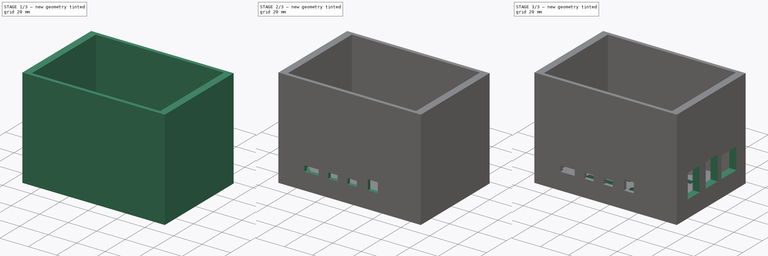
[diagram: build sequence overview — one tinted view per stage of 3, left to right]
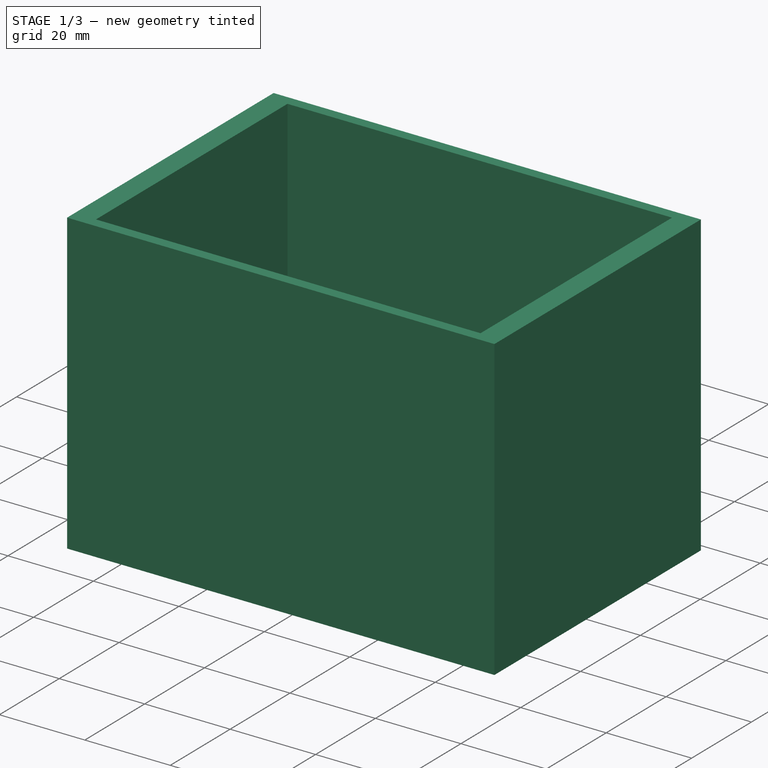
[diagram: stage 1 of 3 — iso view after this stage's code; geometry added in this stage tinted green]
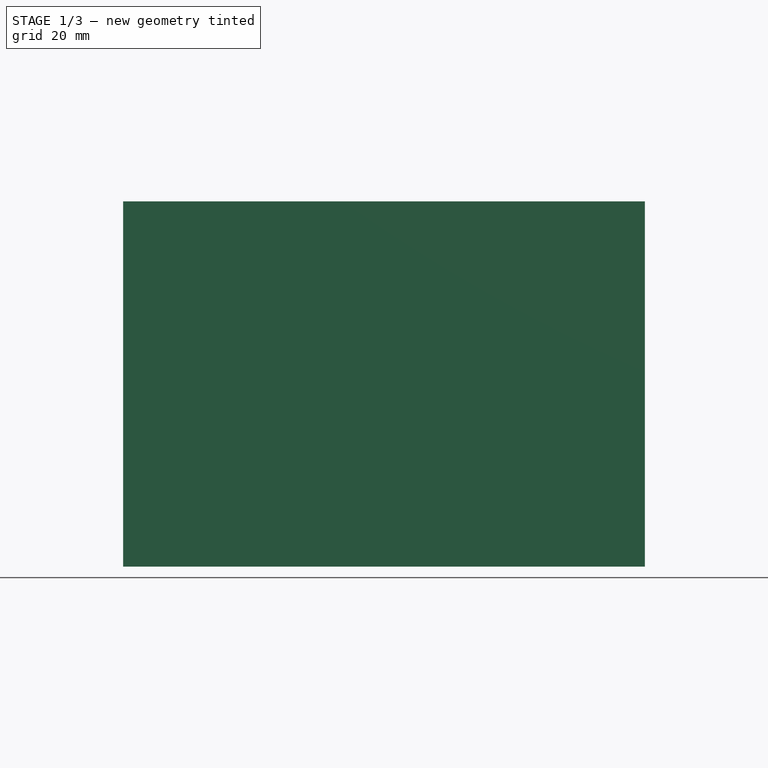
[diagram: stage 1 of 3 — front view after this stage's code; geometry added in this stage tinted green]
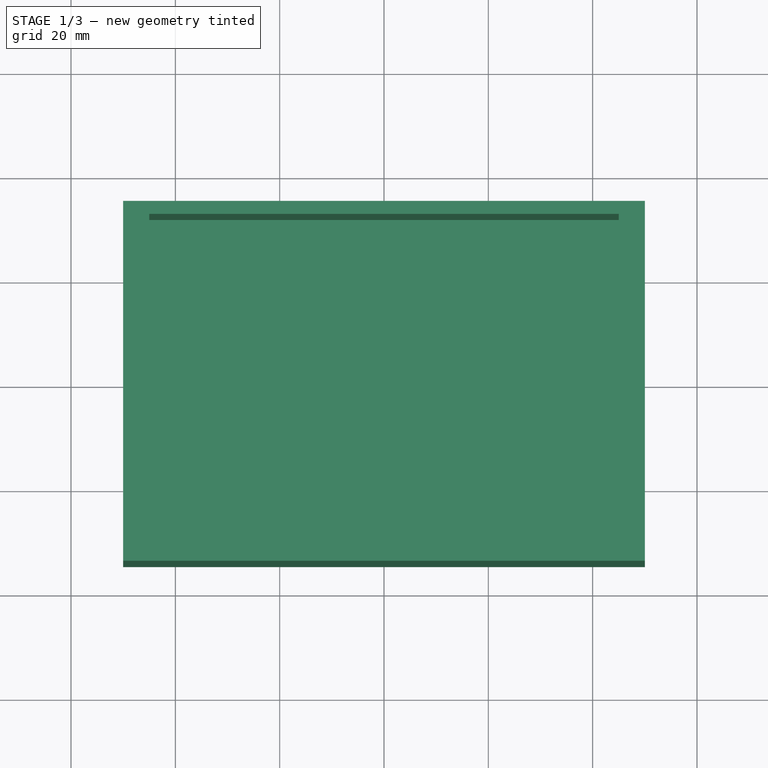
[diagram: stage 1 of 3 — top view after this stage's code; geometry added in this stage tinted green]
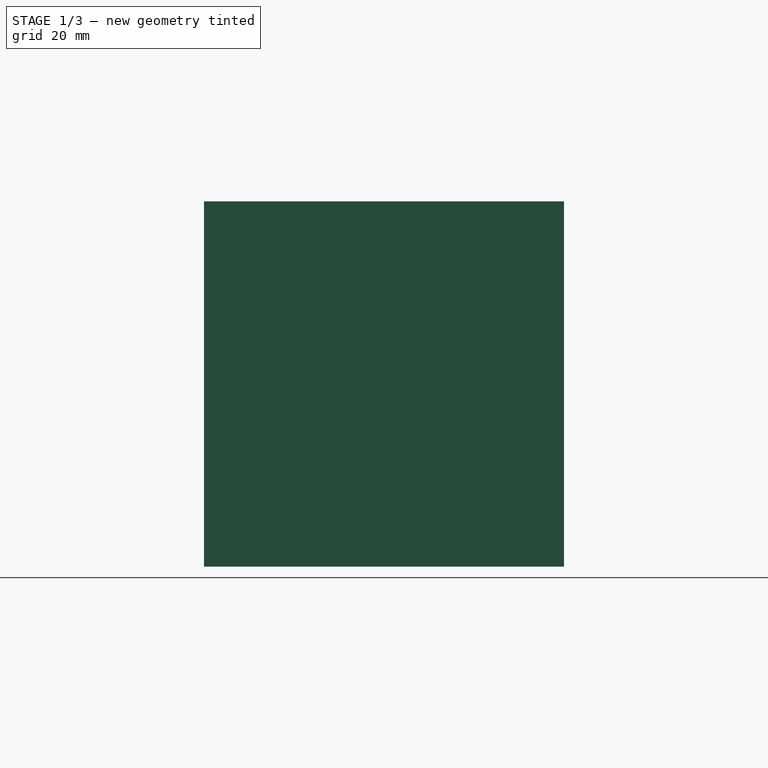
[diagram: stage 1 of 3 — right view after this stage's code; geometry added in this stage tinted green]
FCSTD DOCUMENT  (FreeCAD 0.19R24267 +99 (Git))
Label: case_spi4_v3
License: All rights reserved
LicenseURL: http://en.wikipedia.org/wiki/All_rights_reserved
objects: Sketcher::SketchObject×6, PartDesign::Pocket×4, PartDesign::Pad×2, PartDesign::Body×1
note: 19 computed .brp shape members not serialized (recipe doc carries the construction recipe); baked Part::Feature solids carry a one-line shape summary decoded from their .brp

FEATURE [Sketcher::SketchObject] Sketch  label="external_rough_case"
  FullyConstrained = true
  MapMode = 5
  Support = -> [XY_Plane]
  sketch-geometry (4):
    g0: LineSegment StartX=-50 StartY=34.5 StartZ=0 EndX=50 EndY=34.5 EndZ=0
    g1: LineSegment StartX=50 StartY=34.5 StartZ=0 EndX=50 EndY=-34.5 EndZ=0
    g2: LineSegment StartX=50 StartY=-34.5 StartZ=0 EndX=-50 EndY=-34.5 EndZ=0
    g3: LineSegment StartX=-50 StartY=-34.5 StartZ=0 EndX=-50 EndY=34.5 EndZ=0
  constraints (10):
    c: Coincident(g0,g1)
    c: Coincident(g1,g2)
    c: Coincident(g2,g3)
    c: Coincident(g3,g0)
    c: Horizontal(g2)
    c: Vertical(g1)
    c: DistanceY(g3,g3) = 69
    c: DistanceX(g0,g0) = 100
    c: Symmetric(g0,g0,g-2)
    c: Symmetric(g0,g2,g-1)
FEATURE [PartDesign::Pad] Pad
  Direction = (1,1,1)
  Length = 70
  Length2 = 100
  Profile = -> Sketch
  Type = 0
FEATURE [Sketcher::SketchObject] Sketch001  label="bulk_inner_carving"
  FullyConstrained = true
  MapMode = 5
  Placement = pos=(0,0,70) rot=(0,0,1;0rad)
  Support = -> [Pad]
  sketch-geometry (4):
    g0: LineSegment StartX=-45 StartY=32 StartZ=0 EndX=45 EndY=32 EndZ=0
    g1: LineSegment StartX=45 StartY=32 StartZ=0 EndX=45 EndY=-32 EndZ=0
    g2: LineSegment StartX=45 StartY=-32 StartZ=0 EndX=-45 EndY=-32 EndZ=0
    g3: LineSegment StartX=-45 StartY=-32 StartZ=0 EndX=-45 EndY=32 EndZ=0
  constraints (10):
    c: Coincident(g0,g1)
    c: Coincident(g1,g2)
    c: Coincident(g2,g3)
    c: Coincident(g3,g0)
    c: Horizontal(g2)
    c: Vertical(g3)
    c: DistanceY(g3,g3) = 64
    c: DistanceX(g0,g0) = 90
    c: Symmetric(g0,g0,g-2)
    c: Symmetric(g0,g1,g-1)
FEATURE [PartDesign::Pocket] Pocket
  BaseFeature = -> Pad
  Length = 67.5
  Length2 = 100
  Profile = -> Sketch001
  Type = 0
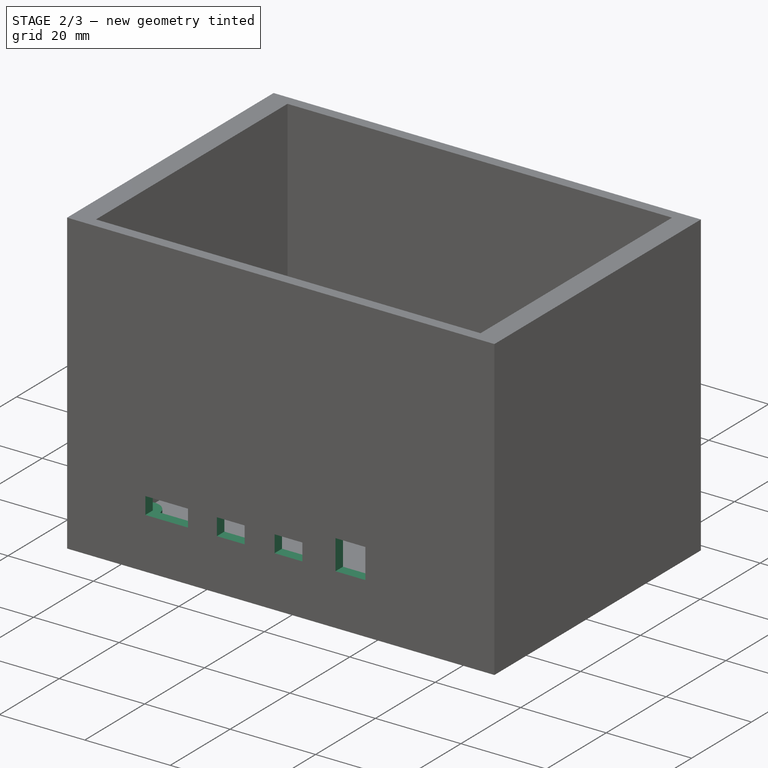
[diagram: stage 2 of 3 — iso view after this stage's code; geometry added in this stage tinted green]
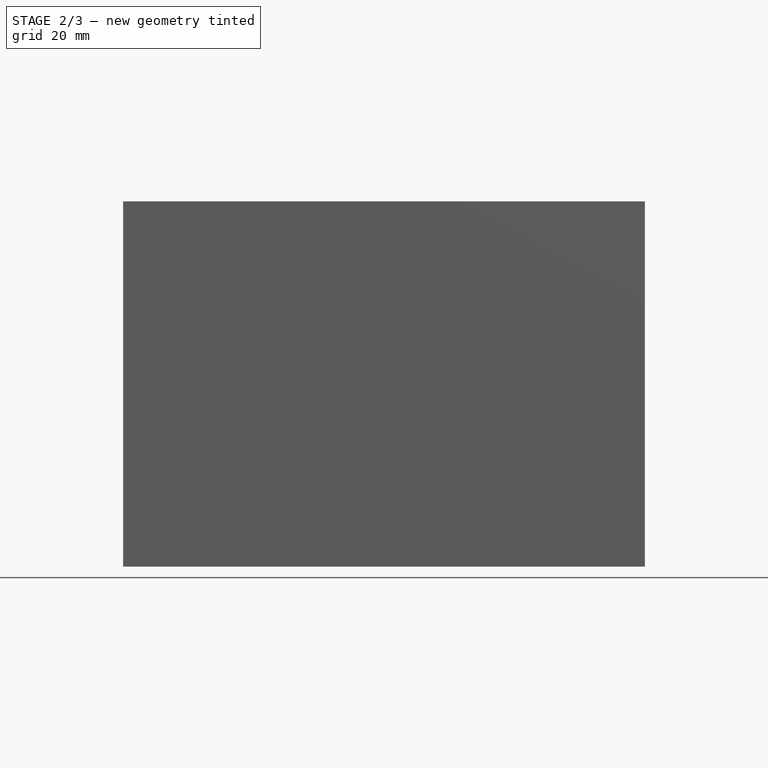
[diagram: stage 2 of 3 — front view after this stage's code; geometry added in this stage tinted green]
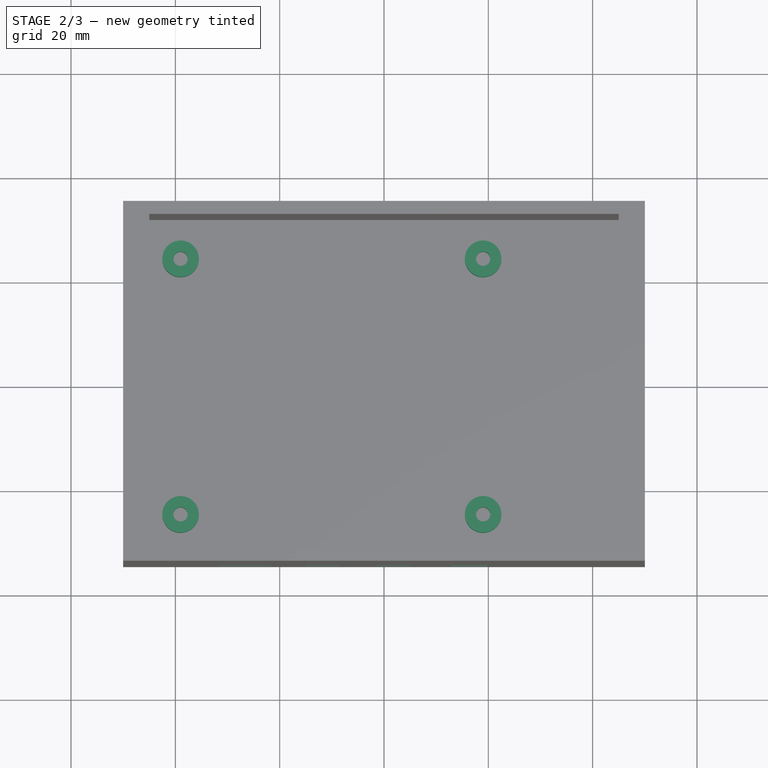
[diagram: stage 2 of 3 — top view after this stage's code; geometry added in this stage tinted green]
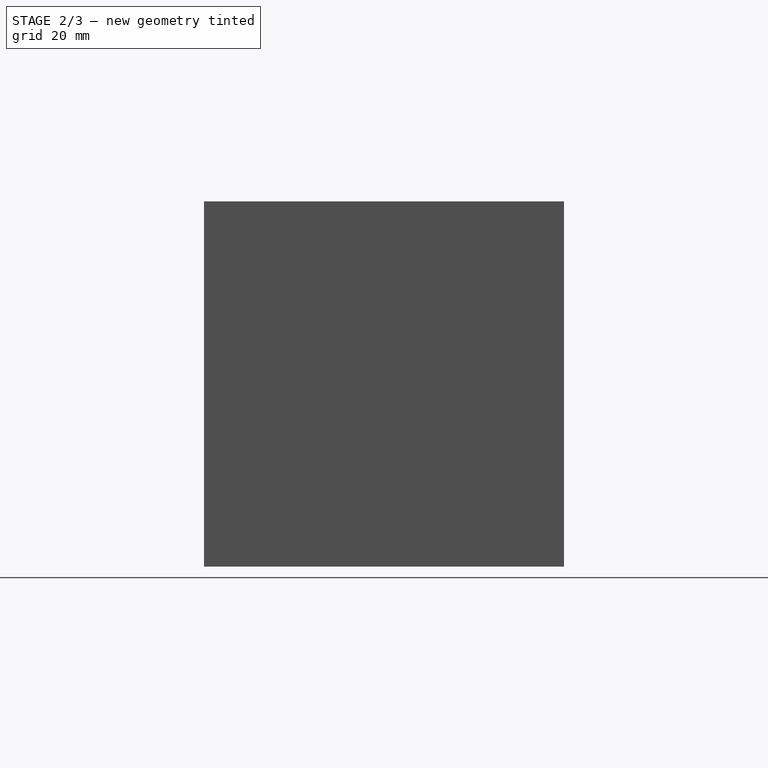
[diagram: stage 2 of 3 — right view after this stage's code; geometry added in this stage tinted green]
FEATURE [Sketcher::SketchObject] Sketch002  label="mounting_pads"
  FullyConstrained = true
  MapMode = 5
  Placement = pos=(0,0,2.5) rot=(0,0,1;0rad)
  Support = -> [Pocket]
  sketch-geometry (12):
    g0: Circle CenterX=-39 CenterY=24.5 CenterZ=0 NormalX=0 NormalY=0 NormalZ=1 AngleXU=0 Radius=1.37
    g1: Circle CenterX=-39 CenterY=24.5 CenterZ=0 NormalX=0 NormalY=0 NormalZ=1 AngleXU=0 Radius=3.5
    g2: Circle CenterX=19 CenterY=24.5 CenterZ=0 NormalX=0 NormalY=0 NormalZ=1 AngleXU=0 Radius=1.37
    g3: Circle CenterX=19 CenterY=24.5 CenterZ=0 NormalX=0 NormalY=0 NormalZ=1 AngleXU=0 Radius=3.5
    g4: Circle CenterX=-39 CenterY=-24.5 CenterZ=0 NormalX=0 NormalY=0 NormalZ=1 AngleXU=0 Radius=1.37
    g5: Circle CenterX=-39 CenterY=-24.5 CenterZ=0 NormalX=0 NormalY=0 NormalZ=1 AngleXU=0 Radius=3.5
    g6: Circle CenterX=19 CenterY=-24.5 CenterZ=0 NormalX=0 NormalY=0 NormalZ=1 AngleXU=0 Radius=1.37
    g7: Circle CenterX=19 CenterY=-24.5 CenterZ=0 NormalX=0 NormalY=0 NormalZ=1 AngleXU=0 Radius=3.5
    g8: LineSegment StartX=-39 StartY=24.5 StartZ=0 EndX=19 EndY=24.5 EndZ=0
    g9: LineSegment StartX=19 StartY=24.5 StartZ=0 EndX=19 EndY=-24.5 EndZ=0
    g10: LineSegment StartX=19 StartY=-24.5 StartZ=0 EndX=-39 EndY=-24.5 EndZ=0
    g11: LineSegment StartX=-39 StartY=-24.5 StartZ=0 EndX=-39 EndY=24.5 EndZ=0
  constraints (27):
    c: Coincident(g1,g0)
    c: Radius(g1) = 3.5
    c: Radius(g0) = 1.37
    c: Coincident(g3,g2)
    c: Equal(g1,g3) = 4.5
    c: Equal(g0,g2) = 1.37
    c: Coincident(g5,g4)
    c: Equal(g1,g5) = 4.5
    c: Equal(g0,g4) = 1.37
    c: Coincident(g7,g6)
    c: Equal(g1,g7) = 4.5
    c: Equal(g0,g6) = 1.37
    c: Coincident(g8,g9)
    c: Coincident(g9,g10)
    c: Coincident(g10,g11)
    c: Coincident(g11,g8)
    c: Horizontal(g8)
    c: Horizontal(g10)
    c: Vertical(g9)
    c: Coincident(g8,g0)
    c: Coincident(g9,g6)
    c: Coincident(g10,g4)
    c: Coincident(g8,g2)
    c: DistanceX(g8,g8) = 58
    c: DistanceY(g11,g11) = 49
    c: Symmetric(g0,g4,g-1)
    c: DistanceX(g0,g-1) = 39
FEATURE [PartDesign::Pad] Pad001
  BaseFeature = -> Pocket
  Direction = (1,1,1)
  Length = 5
  Length2 = 100
  Profile = -> Sketch002
  Type = 0
FEATURE [Sketcher::SketchObject] Sketch003  label="hdmi_holes"
  FullyConstrained = true
  MapMode = 5
  Placement = pos=(0,-34.5,0) rot=(1,0,0;1.5708rad)
  Support = -> [Pad001]
  sketch-geometry (16):
    g0: LineSegment StartX=-31.7 StartY=16 StartZ=0 EndX=-21.7 EndY=16 EndZ=0
    g1: LineSegment StartX=-21.7 StartY=16 StartZ=0 EndX=-21.7 EndY=12 EndZ=0
    g2: LineSegment StartX=-21.7 StartY=12 StartZ=0 EndX=-31.7 EndY=12 EndZ=0
    g3: LineSegment StartX=-31.7 StartY=12 StartZ=0 EndX=-31.7 EndY=16 EndZ=0
    g4: LineSegment StartX=-14.95 StartY=16 StartZ=0 EndX=-8.45 EndY=16 EndZ=0
    g5: LineSegment StartX=-8.45 StartY=16 StartZ=0 EndX=-8.45 EndY=12 EndZ=0
    g6: LineSegment StartX=-8.45 StartY=12 StartZ=0 EndX=-14.95 EndY=12 EndZ=0
    g7: LineSegment StartX=-14.95 StartY=12 StartZ=0 EndX=-14.95 EndY=16 EndZ=0
    g8: LineSegment StartX=-1.45 StartY=16 StartZ=0 EndX=5.05 EndY=16 EndZ=0
    g9: LineSegment StartX=5.05 StartY=16 StartZ=0 EndX=5.05 EndY=12 EndZ=0
    g10: LineSegment StartX=5.05 StartY=12 StartZ=0 EndX=-1.45 EndY=12 EndZ=0
    g11: LineSegment StartX=-1.45 StartY=12 StartZ=0 EndX=-1.45 EndY=16 EndZ=0
    g12: LineSegment StartX=12.8 StartY=19 StartZ=0 EndX=19.8 EndY=19 EndZ=0
    g13: LineSegment StartX=19.8 StartY=19 StartZ=0 EndX=19.8 EndY=12 EndZ=0
    g14: LineSegment StartX=19.8 StartY=12 StartZ=0 EndX=12.8 EndY=12 EndZ=0
    g15: LineSegment StartX=12.8 StartY=12 StartZ=0 EndX=12.8 EndY=19 EndZ=0
  constraints (48):
    c: Coincident(g0,g1)
    c: Coincident(g1,g2)
    c: Coincident(g2,g3)
    c: Coincident(g3,g0)
    c: Horizontal(g0)
    c: Horizontal(g2)
    c: Vertical(g1)
    c: Vertical(g3)
    c: Coincident(g4,g5)
    c: Coincident(g5,g6)
    c: Coincident(g6,g7)
    c: Coincident(g7,g4)
    c: Horizontal(g4)
    c: Horizontal(g6)
    c: Vertical(g5)
    c: Vertical(g7)
    c: Coincident(g8,g9)
    c: Coincident(g9,g10)
    c: Coincident(g10,g11)
    c: Coincident(g11,g8)
    c: Horizontal(g8)
    c: Horizontal(g10)
    c: Vertical(g9)
    c: Vertical(g11)
    c: Coincident(g12,g13)
    c: Coincident(g13,g14)
    c: Coincident(g14,g15)
    c: Coincident(g15,g12)
    c: Horizontal(g12)
    c: Horizontal(g14)
    c: Vertical(g13)
    c: Vertical(g15)
    c: Equal(g5,g11)
    c: Equal(g8,g4)
    c: Horizontal(g14,g9)
    c: Horizontal(g10,g5)
    c: Horizontal(g1,g6)
    c: DistanceX(g0,g0) = 10
    c: DistanceX(g12,g12) = 7
    c: DistanceX(g8,g8) = 6.5
    c: DistanceY(g9,g9) = 4
    c: Equal(g12,g15)
    c: Equal(g7,g1)
    c: DistanceX(g0,g4) = 6.75
    c: DistanceX(g4,g8) = 13.5
    c: DistanceX(g8,g12) = 7.75
    c: DistanceY(g-1,g13) = 12
    c: DistanceX(g2,g-1) = 31.7
FEATURE [PartDesign::Pocket] Pocket001
  BaseFeature = -> Pad001
  Length = 5
  Length2 = 100
  Profile = -> Sketch003
  Type = 0
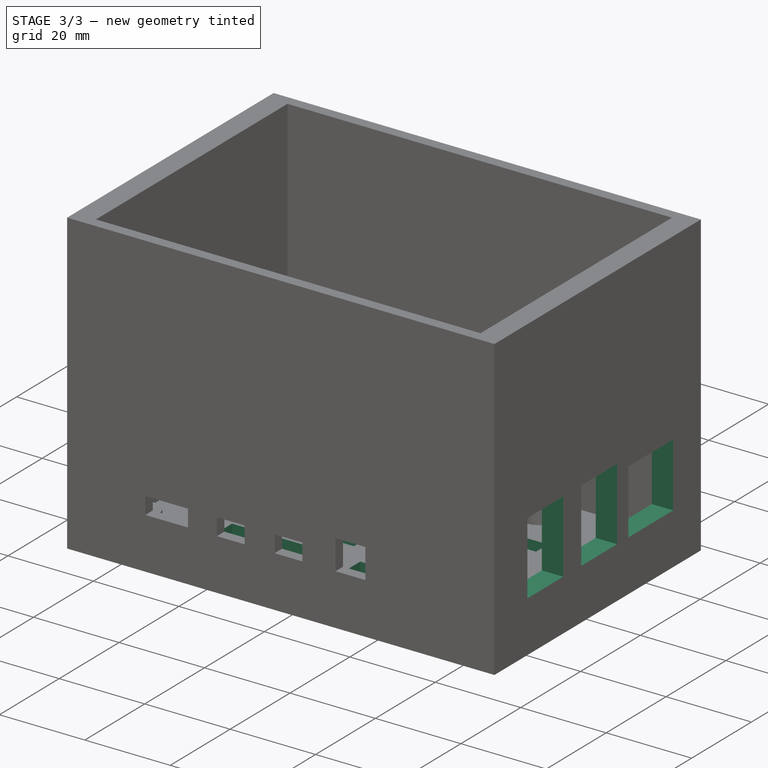
[diagram: stage 3 of 3 — iso view after this stage's code; geometry added in this stage tinted green]
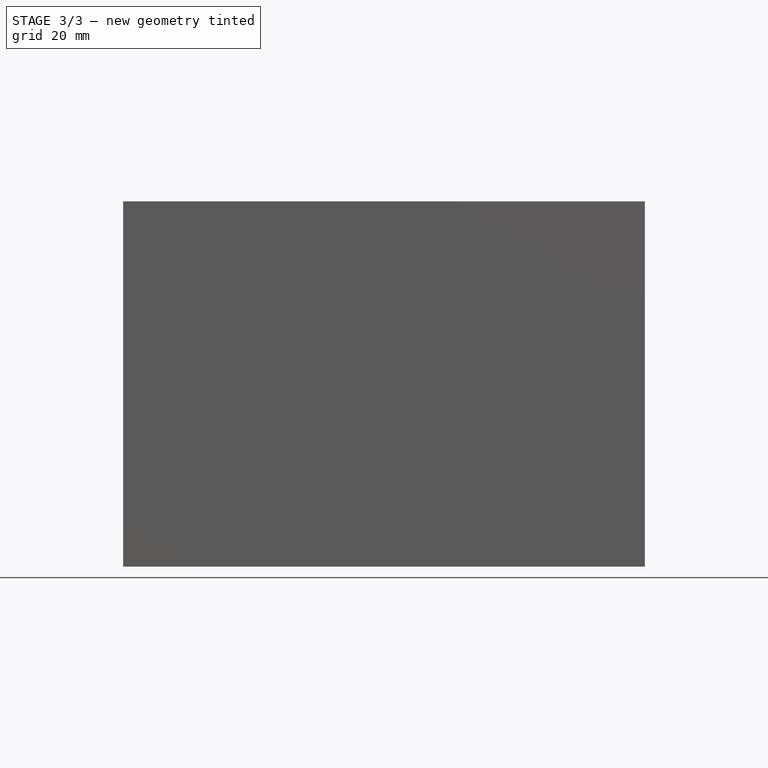
[diagram: stage 3 of 3 — front view after this stage's code; geometry added in this stage tinted green]
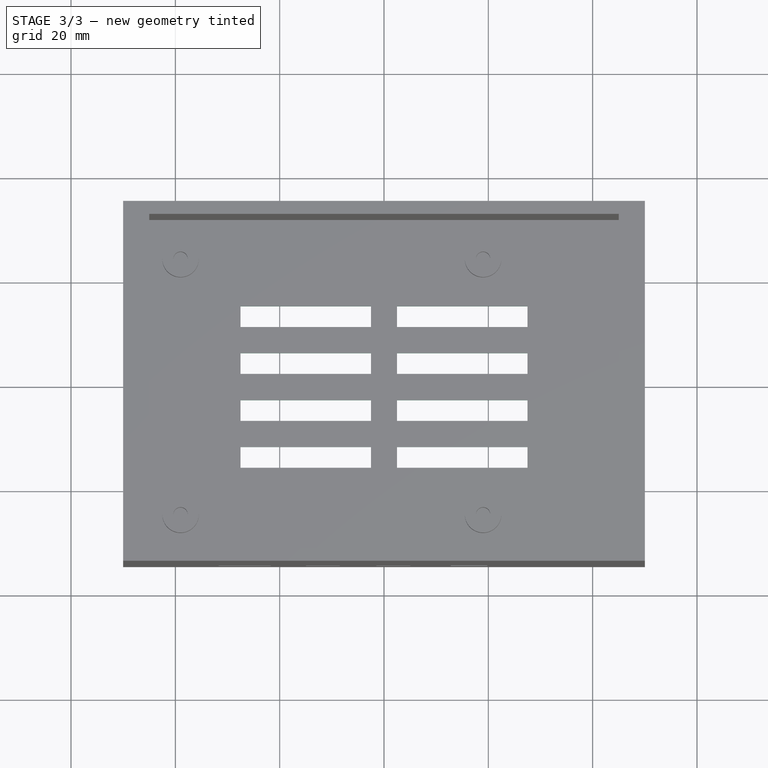
[diagram: stage 3 of 3 — top view after this stage's code; geometry added in this stage tinted green]
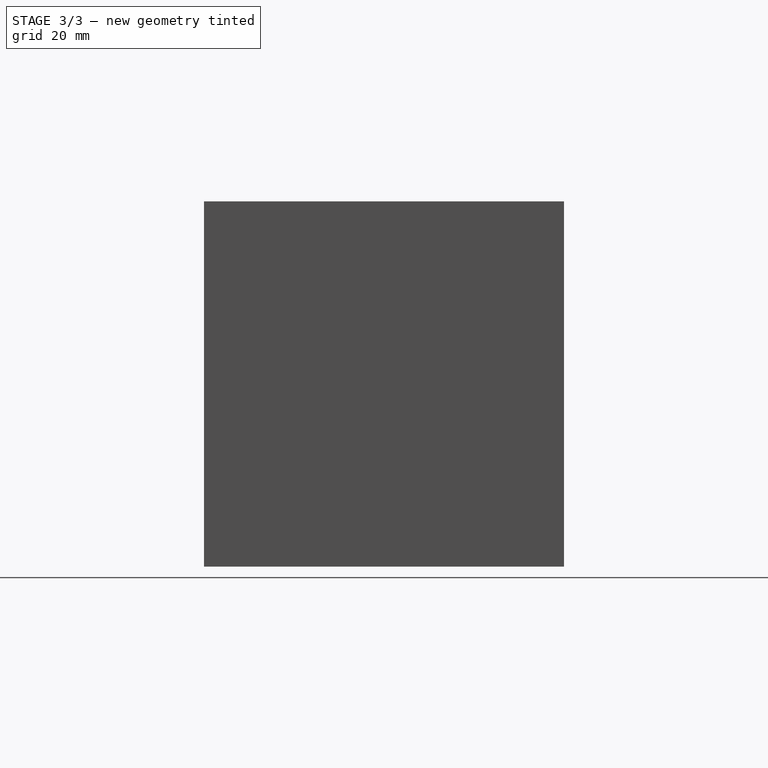
[diagram: stage 3 of 3 — right view after this stage's code; geometry added in this stage tinted green]
FEATURE [Sketcher::SketchObject] Sketch004  label="USB+Ethernet"
  FullyConstrained = true
  MapMode = 5
  Placement = pos=(50,0,0) rot=(0.57735,0.57735,0.57735;2.0944rad)
  Support = -> [Pocket001]
  sketch-geometry (16):
    g0: LineSegment StartX=-23.5 StartY=29 StartZ=0 EndX=-11.5 EndY=29 EndZ=0
    g1: LineSegment StartX=-11.5 StartY=29 StartZ=0 EndX=-11.5 EndY=12 EndZ=0
    g2: LineSegment StartX=-11.5 StartY=12 StartZ=0 EndX=-23.5 EndY=12 EndZ=0
    g3: LineSegment StartX=-23.5 StartY=12 StartZ=0 EndX=-23.5 EndY=29 EndZ=0
    g4: LineSegment StartX=-5.5 StartY=29 StartZ=0 EndX=6.5 EndY=29 EndZ=0
    g5: LineSegment StartX=6.5 StartY=29 StartZ=0 EndX=6.5 EndY=12 EndZ=0
    g6: LineSegment StartX=6.5 StartY=12 StartZ=0 EndX=-5.5 EndY=12 EndZ=0
    g7: LineSegment StartX=-5.5 StartY=12 StartZ=0 EndX=-5.5 EndY=29 EndZ=0
    g8: LineSegment StartX=10.25 StartY=27 StartZ=0 EndX=25.25 EndY=27 EndZ=0
    g9: LineSegment StartX=25.25 StartY=27 StartZ=0 EndX=25.25 EndY=12 EndZ=0
    g10: LineSegment StartX=25.25 StartY=12 StartZ=0 EndX=10.25 EndY=12 EndZ=0
    g11: LineSegment StartX=10.25 StartY=12 StartZ=0 EndX=10.25 EndY=27 EndZ=0
    g12: LineSegment StartX=-11.5 StartY=29 StartZ=0 EndX=-5.5 EndY=29 EndZ=0
    g13: LineSegment StartX=6.5 StartY=29 StartZ=0 EndX=10.25 EndY=27 EndZ=0
    g14: LineSegment StartX=-11.5 StartY=12 StartZ=0 EndX=-5.5 EndY=12 EndZ=0
    g15: LineSegment StartX=6.5 StartY=12 StartZ=0 EndX=10.25 EndY=12 EndZ=0
  constraints (44):
    c: Coincident(g0,g1)
    c: Coincident(g1,g2)
    c: Coincident(g2,g3)
    c: Coincident(g3,g0)
    c: Horizontal(g0)
    c: Horizontal(g2)
    c: Vertical(g1)
    c: Vertical(g3)
    c: Coincident(g4,g5)
    c: Coincident(g5,g6)
    c: Coincident(g6,g7)
    c: Coincident(g7,g4)
    c: Horizontal(g4)
    c: Horizontal(g6)
    c: Vertical(g5)
    c: Vertical(g7)
    c: Coincident(g8,g9)
    c: Coincident(g9,g10)
    c: Coincident(g10,g11)
    c: Coincident(g11,g8)
    c: Horizontal(g8)
    c: Horizontal(g10)
    c: Vertical(g9)
    c: Vertical(g11)
    c: DistanceY(g11,g11) = 15
    c: Equal(g1,g7)
    c: DistanceY(g7,g7) = 17
    c: Horizontal(g1,g5)
    c: Horizontal(g5,g10)
    c: Equal(g2,g6)
    c: DistanceX(g0,g0) = 12
    c: Equal(g8,g11)
    c: DistanceX(g4,g8) = 18.75
    c: DistanceX(g0,g4) = 18
    c: DistanceY(g-1,g2) = 12
    c: Coincident(g12,g0)
    c: Coincident(g12,g4)
    c: Coincident(g13,g4)
    c: Coincident(g13,g8)
    c: Coincident(g14,g1)
    c: Coincident(g14,g6)
    c: Coincident(g15,g5)
    c: Coincident(g15,g10)
    c: DistanceX(g9,g-1) = -25.25
FEATURE [PartDesign::Pocket] Pocket002
  BaseFeature = -> Pocket001
  Length = 5
  Length2 = 100
  Profile = -> Sketch004
  Type = 0
FEATURE [Sketcher::SketchObject] Sketch005  label="bottom_vents"
  FullyConstrained = true
  MapMode = 5
  Placement = pos=(0,0,2.5) rot=(0,0,1;0rad)
  Support = -> [Pocket002]
  sketch-geometry (48):
    g0: LineSegment StartX=-27.5 StartY=15.5 StartZ=0 EndX=-2.5 EndY=15.5 EndZ=0
    g1: LineSegment StartX=-2.5 StartY=15.5 StartZ=0 EndX=-2.5 EndY=11.5 EndZ=0
    g2: LineSegment StartX=-2.5 StartY=11.5 StartZ=0 EndX=-27.5 EndY=11.5 EndZ=0
    g3: LineSegment StartX=-27.5 StartY=11.5 StartZ=0 EndX=-27.5 EndY=15.5 EndZ=0
    g4: LineSegment StartX=2.5 StartY=15.5 StartZ=0 EndX=27.5 EndY=15.5 EndZ=0
    g5: LineSegment StartX=27.5 StartY=15.5 StartZ=0 EndX=27.5 EndY=11.5 EndZ=0
    g6: LineSegment StartX=27.5 StartY=11.5 StartZ=0 EndX=2.5 EndY=11.5 EndZ=0
    g7: LineSegment StartX=2.5 StartY=11.5 StartZ=0 EndX=2.5 EndY=15.5 EndZ=0
    g8: LineSegment StartX=-27.5 StartY=6.5 StartZ=0 EndX=-2.5 EndY=6.5 EndZ=0
    g9: LineSegment StartX=-2.5 StartY=6.5 StartZ=0 EndX=-2.5 EndY=2.5 EndZ=0
    g10: LineSegment StartX=-2.5 StartY=2.5 StartZ=0 EndX=-27.5 EndY=2.5 EndZ=0
    g11: LineSegment StartX=-27.5 StartY=2.5 StartZ=0 EndX=-27.5 EndY=6.5 EndZ=0
    g12: LineSegment StartX=2.5 StartY=6.5 StartZ=0 EndX=27.5 EndY=6.5 EndZ=0
    g13: LineSegment StartX=27.5 StartY=6.5 StartZ=0 EndX=27.5 EndY=2.5 EndZ=0
    g14: LineSegment StartX=27.5 StartY=2.5 StartZ=0 EndX=2.5 EndY=2.5 EndZ=0
    g15: LineSegment StartX=2.5 StartY=2.5 StartZ=0 EndX=2.5 EndY=6.5 EndZ=0
    g16: LineSegment StartX=-2.5 StartY=11.5 StartZ=0 EndX=2.5 EndY=11.5 EndZ=0
    g17: LineSegment StartX=2.5 StartY=11.5 StartZ=0 EndX=2.5 EndY=6.5 EndZ=0
    g18: LineSegment StartX=2.5 StartY=6.5 StartZ=0 EndX=-2.5 EndY=6.5 EndZ=0
    g19: LineSegment StartX=-2.5 StartY=6.5 StartZ=0 EndX=-2.5 EndY=11.5 EndZ=0
    g20: LineSegment StartX=-2.5 StartY=2.5 StartZ=0 EndX=2.5 EndY=2.5 EndZ=0
    g21: LineSegment StartX=2.5 StartY=2.5 StartZ=0 EndX=2.5 EndY=-2.5 EndZ=0
    g22: LineSegment StartX=2.5 StartY=-2.5 StartZ=0 EndX=-2.5 EndY=-2.5 EndZ=0
    g23: LineSegment StartX=-2.5 StartY=-2.5 StartZ=0 EndX=-2.5 EndY=2.5 EndZ=0
    g24: LineSegment StartX=-27.5 StartY=-2.5 StartZ=0 EndX=-2.5 EndY=-2.5 EndZ=0
    g25: LineSegment StartX=-2.5 StartY=-2.5 StartZ=0 EndX=-2.5 EndY=-6.5 EndZ=0
    g26: LineSegment StartX=-2.5 StartY=-6.5 StartZ=0 EndX=-27.5 EndY=-6.5 EndZ=0
    g27: LineSegment StartX=-27.5 StartY=-6.5 StartZ=0 EndX=-27.5 EndY=-2.5 EndZ=0
    g28: LineSegment StartX=2.5 StartY=-2.5 StartZ=0 EndX=27.5 EndY=-2.5 EndZ=0
    g29: LineSegment StartX=27.5 StartY=-2.5 StartZ=0 EndX=27.5 EndY=-6.5 EndZ=0
    g30: LineSegment StartX=27.5 StartY=-6.5 StartZ=0 EndX=2.5 EndY=-6.5 EndZ=0
    g31: LineSegment StartX=2.5 StartY=-6.5 StartZ=0 EndX=2.5 EndY=-2.5 EndZ=0
    g32: LineSegment StartX=-27.5 StartY=-11.5 StartZ=0 EndX=-2.5 EndY=-11.5 EndZ=0
    g33: LineSegment StartX=-2.5 StartY=-11.5 StartZ=0 EndX=-2.5 EndY=-15.5 EndZ=0
    g34: LineSegment StartX=-2.5 StartY=-15.5 StartZ=0 EndX=-27.5 EndY=-15.5 EndZ=0
    g35: LineSegment StartX=-27.5 StartY=-15.5 StartZ=0 EndX=-27.5 EndY=-11.5 EndZ=0
    g36: LineSegment StartX=2.5 StartY=-11.5 StartZ=0 EndX=27.5 EndY=-11.5 EndZ=0
    g37: LineSegment StartX=27.5 StartY=-11.5 StartZ=0 EndX=27.5 EndY=-15.5 EndZ=0
    g38: LineSegment StartX=27.5 StartY=-15.5 StartZ=0 EndX=2.5 EndY=-15.5 EndZ=0
    g39: LineSegment StartX=2.5 StartY=-15.5 StartZ=0 EndX=2.5 EndY=-11.5 EndZ=0
    g40: LineSegment StartX=-2.5 StartY=-6.5 StartZ=0 EndX=2.5 EndY=-6.5 EndZ=0
    g41: LineSegment StartX=2.5 StartY=-6.5 StartZ=0 EndX=2.5 EndY=-11.5 EndZ=0
    g42: LineSegment StartX=2.5 StartY=-11.5 StartZ=0 EndX=-2.5 EndY=-11.5 EndZ=0
    g43: LineSegment StartX=-2.5 StartY=-11.5 StartZ=0 EndX=-2.5 EndY=-6.5 EndZ=0
    g44: Circle CenterX=0 CenterY=0 CenterZ=0 NormalX=0 NormalY=0 NormalZ=1 AngleXU=0 Radius=3.53553
    g45: LineSegment StartX=0 StartY=0 StartZ=0 EndX=2.5 EndY=2.5 EndZ=0
    g46: LineSegment StartX=0 StartY=0 StartZ=0 EndX=-2.5 EndY=-2.5 EndZ=0
    g47: LineSegment StartX=0 StartY=0 StartZ=0 EndX=2.5 EndY=-2.5 EndZ=0
  constraints (129):
    c: Coincident(g0,g1)
    c: Coincident(g1,g2)
    c: Coincident(g2,g3)
    c: Coincident(g3,g0)
    c: Horizontal(g0)
    c: Horizontal(g2)
    c: Vertical(g1)
    c: Vertical(g3)
    c: Coincident(g4,g5)
    c: Coincident(g5,g6)
    c: Coincident(g6,g7)
    c: Coincident(g7,g4)
    c: Horizontal(g4)
    c: Horizontal(g6)
    c: Vertical(g5)
    c: Vertical(g7)
    c: Coincident(g8,g9)
    c: Coincident(g9,g10)
    c: Coincident(g10,g11)
    c: Coincident(g11,g8)
    c: Horizontal(g8)
    c: Horizontal(g10)
    c: Vertical(g9)
    c: Vertical(g11)
    c: Coincident(g12,g13)
    c: Coincident(g13,g14)
    c: Coincident(g14,g15)
    c: Coincident(g15,g12)
    c: Horizontal(g12)
    c: Horizontal(g14)
    c: Vertical(g13)
    c: Vertical(g15)
    c: Equal(g1,g7)
    c: Equal(g7,g15)
    c: Equal(g15,g9)
    c: Equal(g0,g4)
    c: Equal(g4,g12)
    c: Equal(g12,g8)
    c: Coincident(g16,g17)
    c: Coincident(g17,g18)
    c: Coincident(g18,g19)
    c: Coincident(g19,g16)
    c: Horizontal(g16)
    c: Horizontal(g18)
    c: Vertical(g17)
    c: Vertical(g19)
    c: Coincident(g16,g1)
    c: Coincident(g6,g16)
    c: Coincident(g8,g18)
    c: Coincident(g12,g17)
    c: Equal(g16,g19)
    c: DistanceY(g3,g3) = 4
    c: DistanceY(g19,g19) = 5
    c: Coincident(g20,g21)
    c: Coincident(g21,g22)
    c: Coincident(g22,g23)
    c: Coincident(g23,g20)
    c: Horizontal(g22)
    c: Vertical(g21)
    c: Vertical(g23)
    c: Coincident(g20,g9)
    c: Coincident(g20,g14)
    c: Equal(g20,g23)
    c: Coincident(g24,g25)
    c: Coincident(g25,g26)
    c: Coincident(g26,g27)
    c: Coincident(g27,g24)
    c: Horizontal(g24)
    c: Horizontal(g26)
    c: Vertical(g25)
    c: Vertical(g27)
    c: Coincident(g28,g29)
    c: Coincident(g29,g30)
    c: Coincident(g30,g31)
    c: Coincident(g31,g28)
    c: Horizontal(g28)
    c: Horizontal(g30)
    c: Vertical(g29)
    c: Vertical(g31)
    c: Coincident(g32,g33)
    c: Coincident(g33,g34)
    c: Coincident(g34,g35)
    c: Coincident(g35,g32)
    c: Horizontal(g32)
    c: Horizontal(g34)
    c: Vertical(g33)
    c: Vertical(g35)
    c: Coincident(g36,g37)
    c: Coincident(g37,g38)
    c: Coincident(g38,g39)
    c: Coincident(g39,g36)
    c: Horizontal(g36)
    c: Horizontal(g38)
    c: Vertical(g37)
    c: Vertical(g39)
    c: Equal(g10,g24)
    c: Equal(g24,g32)
    c: Equal(g32,g36)
    c: Equal(g36,g28)
    c: Equal(g27,g35)
    c: Equal(g35,g11)
    c: Coincident(g40,g41)
    c: Coincident(g41,g42)
    c: Coincident(g42,g43)
    c: Coincident(g43,g40)
    c: Horizontal(g40)
    c: Horizontal(g42)
    c: Vertical(g41)
    c: Vertical(g43)
    c: Coincident(g40,g25)
    c: Coincident(g40,g30)
    c: Coincident(g41,g36)
    c: Coincident(g32,g42)
    c: Coincident(g24,g22)
    c: Coincident(g21,g28)
    c: Equal(g23,g43)
    c: Equal(g33,g39)
    c: DistanceX(g0,g0) = 25
    c: PointOnObject(g14,g44)
    c: PointOnObject(g24,g44)
    c: Coincident(g45,g44)
    c: Coincident(g45,g14)
    c: Coincident(g46,g44)
    c: Coincident(g46,g24)
    c: Coincident(g47,g44)
    c: Coincident(g47,g28)
    c: Equal(g45,g47)
    c: PointOnObject(g44,g-1)
    c: PointOnObject(g44,g-2)
FEATURE [PartDesign::Pocket] Pocket003
  BaseFeature = -> Pocket002
  Length = 5
  Length2 = 100
  Profile = -> Sketch005
  Refine = true
  Type = 0
FEATURE [PartDesign::Body] Body  label="RPI_case"
  Group = -> [Sketch,Pad,Sketch001,Pocket,Sketch002,Pad001,Sketch003,Pocket001,Sketch004,Pocket002,Sketch005,Pocket003]
  Origin = -> Origin
  Tip = -> Pocket003
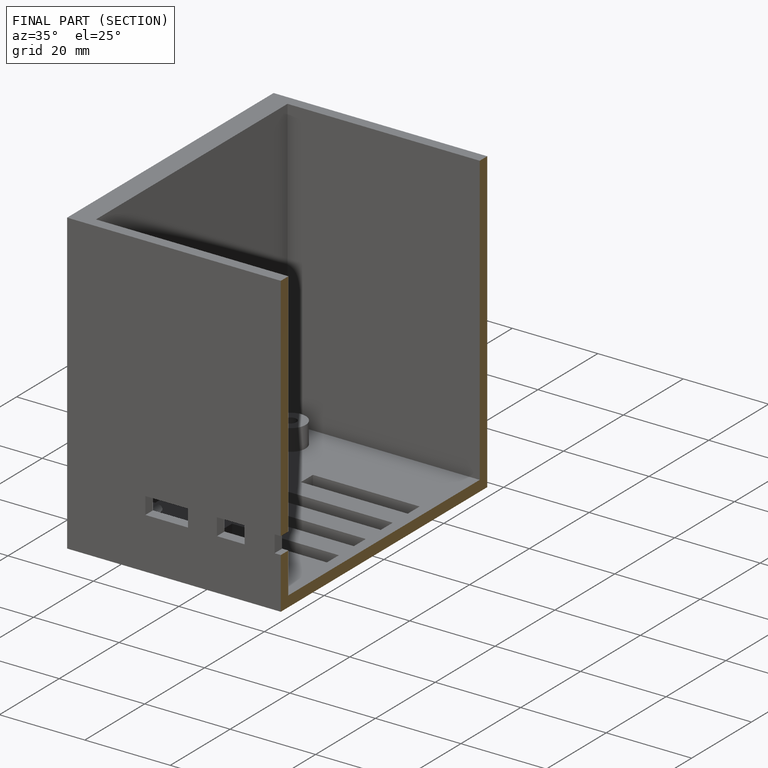
[diagram: finished part — half-section view (interior)]
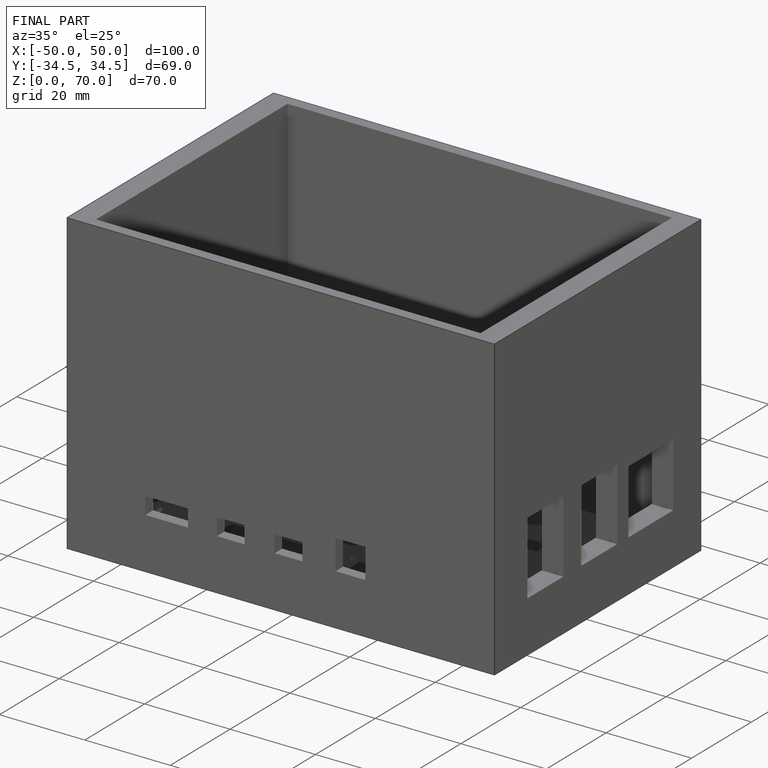
[diagram: finished part — iso view with bounding-box wireframe]
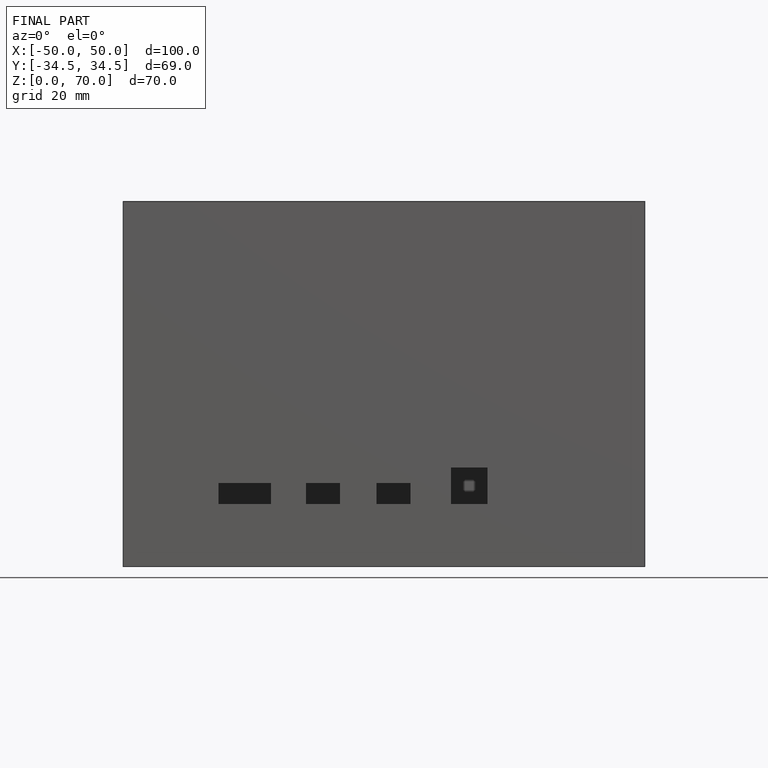
[diagram: finished part — front view with bounding-box wireframe]
